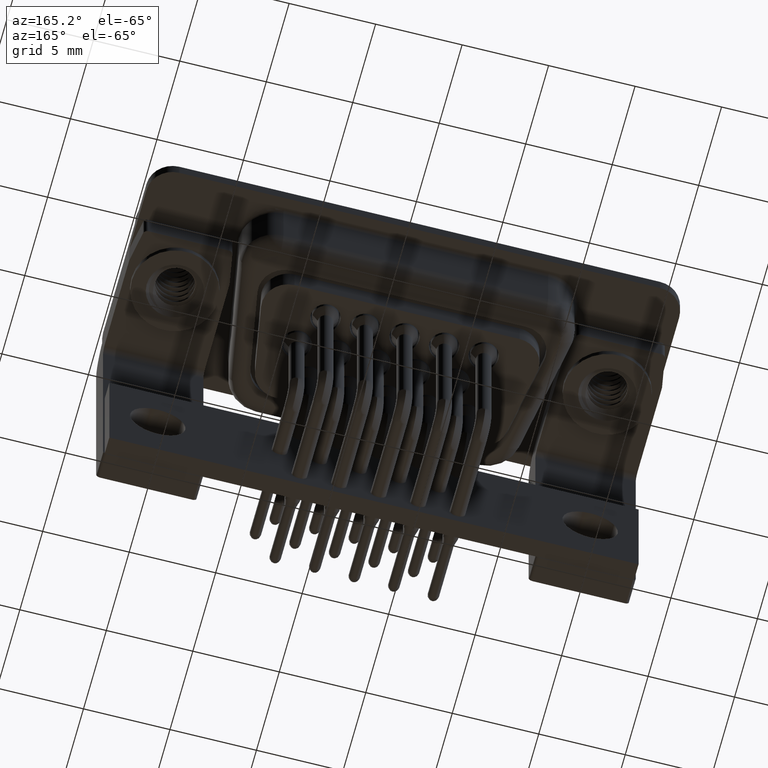
[diagram: clean part render]
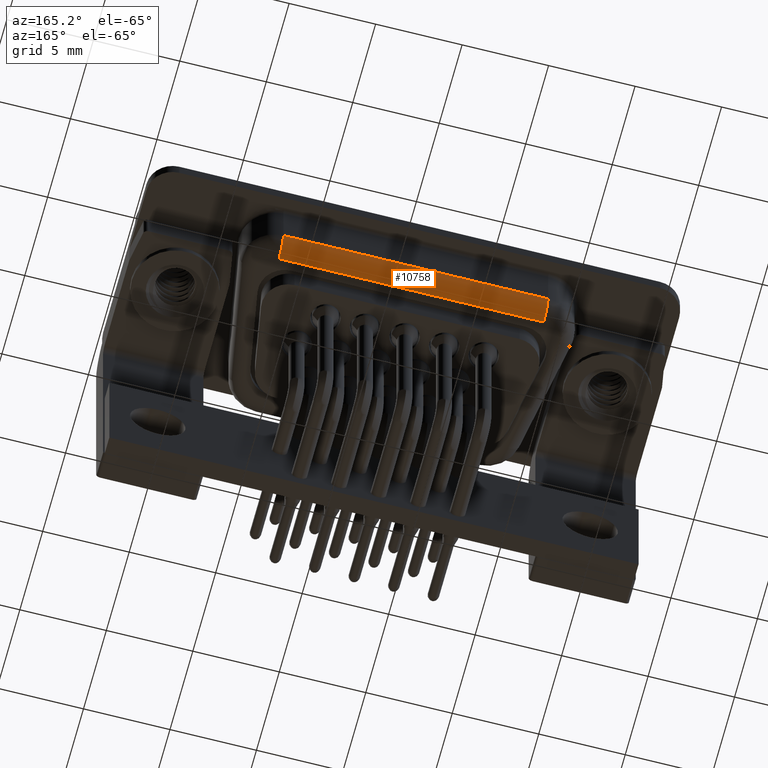
[diagram: same view with one face highlighted and labeled with its STEP entity id]
A machine part, auxiliary view. The second image highlights one B-rep face of the part: STEP entity #10758.
In plain terms, the highlighted cylindrical surface (edge-blend (fillet) strip) has radius 1 mm, axis along (1, 0, 0).
Its self-contained STEP definition (entity closure, byte-faithful):
#312 = VECTOR ( 'NONE', #9956, 1000.000000000000000 ) ;
#338 = AXIS2_PLACEMENT_3D ( 'NONE', #13294, #2724, #15085 ) ;
#660 = CYLINDRICAL_SURFACE ( 'NONE', #17301, 1.000000000000000000 ) ;
#1003 = VERTEX_POINT ( 'NONE', #13313 ) ;
#1856 = EDGE_CURVE ( 'NONE', #20958, #3341, #19292, .T. ) ;
#2724 = DIRECTION ( 'NONE',  ( -1.000000000000000000, 0.0000000000000000000, 0.0000000000000000000 ) ) ;
#3341 = VERTEX_POINT ( 'NONE', #15242 ) ;
#3930 = LINE ( 'NONE', #20341, #11112 ) ;
#4285 = DIRECTION ( 'NONE',  ( 0.0000000000000000000, 0.0000000000000000000, 1.000000000000000000 ) ) ;
#4408 = EDGE_LOOP ( 'NONE', ( #15923, #12474, #18351, #15782 ) ) ;
#4412 = DIRECTION ( 'NONE',  ( 1.000000000000000000, 0.0000000000000000000, 0.0000000000000000000 ) ) ;
#5218 = CARTESIAN_POINT ( 'NONE',  ( 20.15000000000000200, 5.399999999999995900, -3.499999999999999600 ) ) ;
#8658 = CIRCLE ( 'NONE', #338, 1.000000000000000000 ) ;
#8852 = CARTESIAN_POINT ( 'NONE',  ( 4.850000000000006800, 5.399999999999998600, -3.499999999999999600 ) ) ;
#9956 = DIRECTION ( 'NONE',  ( -1.000000000000000000, -0.0000000000000000000, -0.0000000000000000000 ) ) ;
#10758 = ADVANCED_FACE ( 'NONE', ( #19434 ), #660, .T. ) ;
#11112 = VECTOR ( 'NONE', #4412, 1000.000000000000000 ) ;
#11874 = EDGE_CURVE ( 'NONE', #1003, #3341, #3930, .T. ) ;
#12474 = ORIENTED_EDGE ( 'NONE', *, *, #11874, .F. ) ;
#13294 = CARTESIAN_POINT ( 'NONE',  ( 4.850000000000006800, 4.399999999999995900, -3.499999999999999600 ) ) ;
#13313 = CARTESIAN_POINT ( 'NONE',  ( 4.850000000000006800, 4.399999999999995900, -4.500000000000000000 ) ) ;
#13921 = DIRECTION ( 'NONE',  ( 1.000000000000000000, 0.0000000000000000000, 0.0000000000000000000 ) ) ;
#14388 = LINE ( 'NONE', #18688, #312 ) ;
#15000 = VERTEX_POINT ( 'NONE', #8852 ) ;
#15085 = DIRECTION ( 'NONE',  ( 0.0000000000000000000, 0.0000000000000000000, 1.000000000000000000 ) ) ;
#15229 = AXIS2_PLACEMENT_3D ( 'NONE', #21647, #21619, #4285 ) ;
#15242 = CARTESIAN_POINT ( 'NONE',  ( 20.15000000000000200, 4.399999999999995900, -4.500000000000000000 ) ) ;
#15782 = ORIENTED_EDGE ( 'NONE', *, *, #15903, .F. ) ;
#15903 = EDGE_CURVE ( 'NONE', #20958, #15000, #14388, .T. ) ;
#15923 = ORIENTED_EDGE ( 'NONE', *, *, #1856, .T. ) ;
#17301 = AXIS2_PLACEMENT_3D ( 'NONE', #22714, #13921, #17389 ) ;
#17389 = DIRECTION ( 'NONE',  ( 0.0000000000000000000, 0.0000000000000000000, -1.000000000000000000 ) ) ;
#18351 = ORIENTED_EDGE ( 'NONE', *, *, #22133, .F. ) ;
#18688 = CARTESIAN_POINT ( 'NONE',  ( 20.15000000000000200, 5.399999999999995900, -3.499999999999999600 ) ) ;
#19292 = CIRCLE ( 'NONE', #15229, 1.000000000000000000 ) ;
#19434 = FACE_OUTER_BOUND ( 'NONE', #4408, .T. ) ;
#20341 = CARTESIAN_POINT ( 'NONE',  ( 6.049023468817512800, 4.399999999999995900, -4.500000000000000000 ) ) ;
#20958 = VERTEX_POINT ( 'NONE', #5218 ) ;
#21619 = DIRECTION ( 'NONE',  ( -1.000000000000000000, 0.0000000000000000000, 0.0000000000000000000 ) ) ;
#21647 = CARTESIAN_POINT ( 'NONE',  ( 20.15000000000000200, 4.399999999999998600, -3.499999999999999600 ) ) ;
#22133 = EDGE_CURVE ( 'NONE', #15000, #1003, #8658, .T. ) ;
#22714 = CARTESIAN_POINT ( 'NONE',  ( 6.049023468817512800, 4.399999999999995900, -3.499999999999999600 ) ) ;